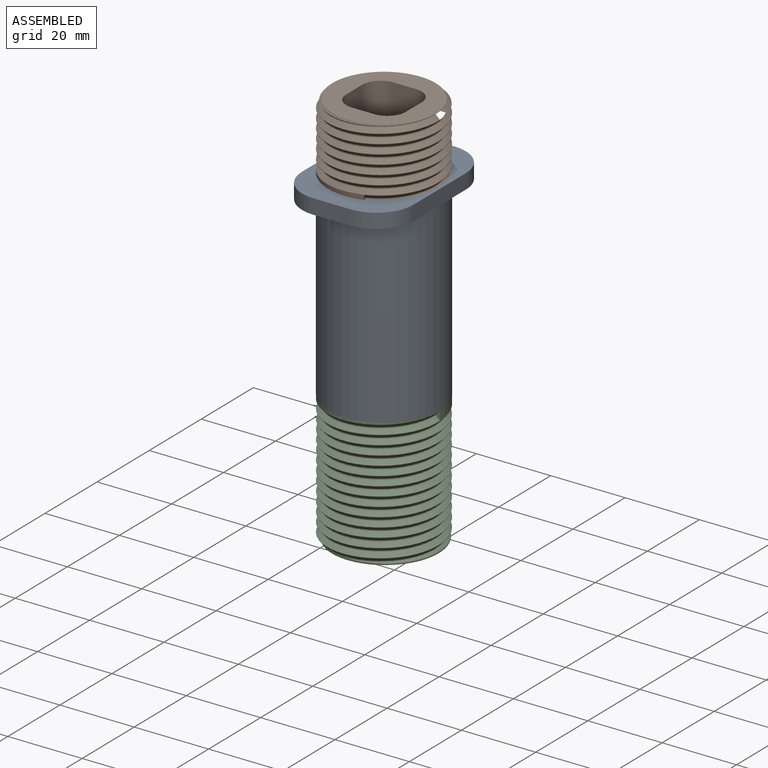
[diagram: assembled view]
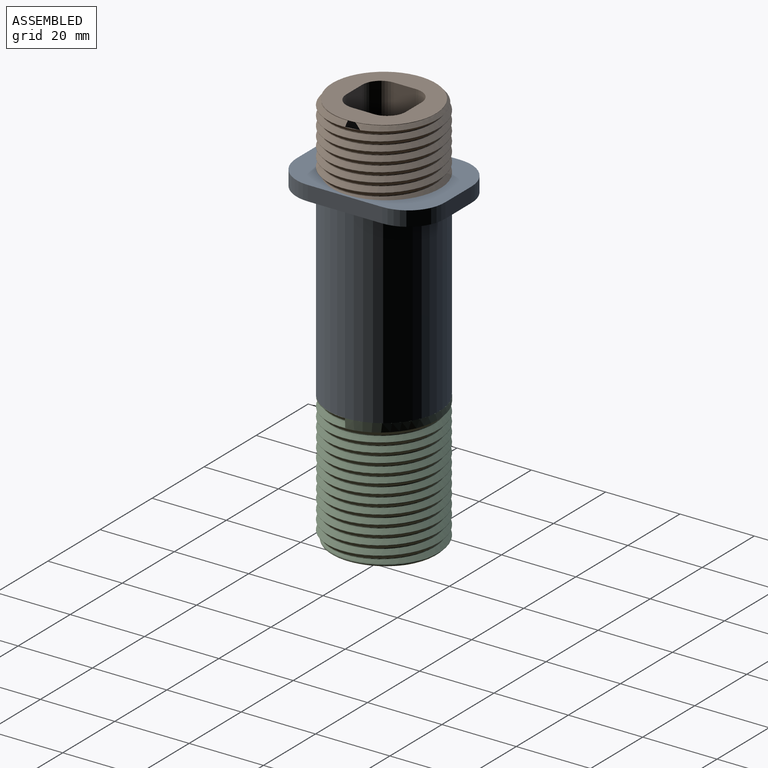
[diagram: assembled view, second angle]
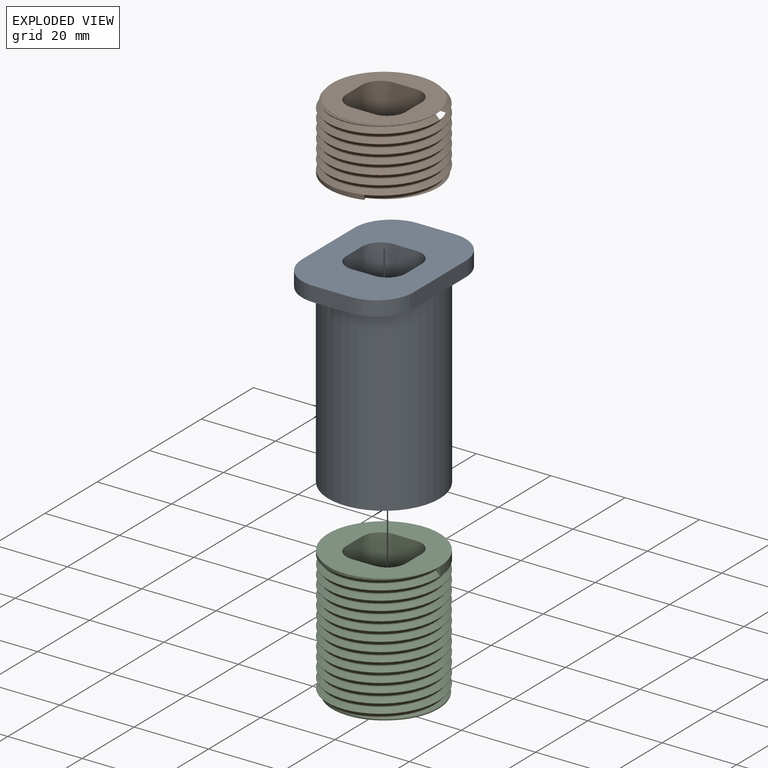
[diagram: exploded view]
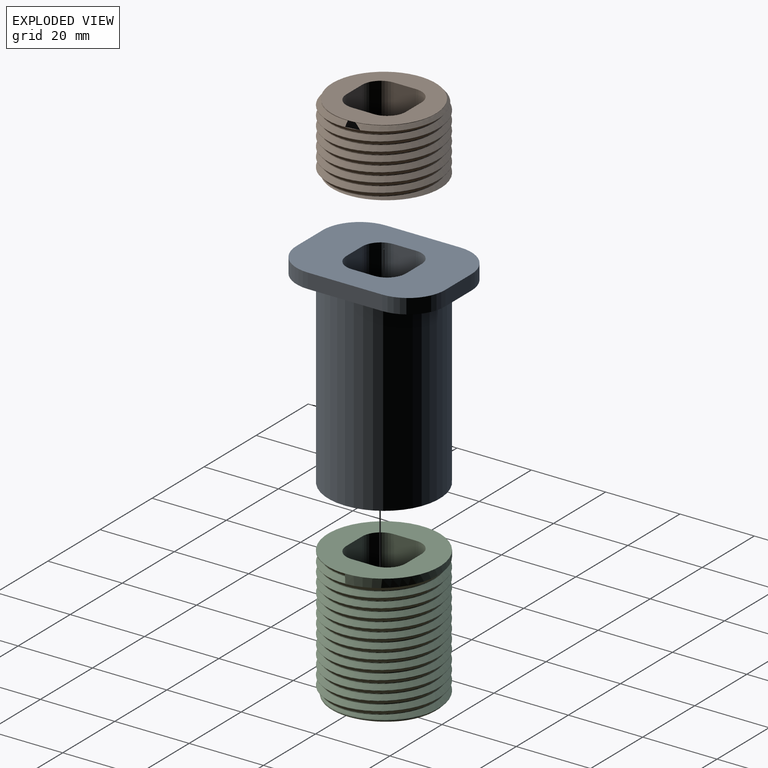
[diagram: exploded view, second angle]
ASSEMBLY  parts=3 mates=2
PART A: 21 faces, bbox 30x40x54 mm
  f0: plane 30x30mm, normal (0,0,-1), area 472.3mm2, adj f2,f13,f14,f15,f16,f17,f18,f19
  f1: plane 40x30mm, normal (0,0,1), area 879.6mm2, adj f5,f6,f7,f8,f9,f10,f11,f12
  f2: cylinder r=15mm len=50mm, axis (0,0,-1), area 4712.4mm2, adj f0,f3,f4
  f3: plane 30x20mm, normal (0,0,-1), area 203.7mm2, adj f2,f5,f6,f7,f9,f10
  f4: plane 30x20mm, normal (0,0,-1), area 203.7mm2, adj f2,f5,f7,f8,f11,f12
  f5: plane 20x4mm, normal (1,0,0), area 80mm2, adj f1,f3,f4,f9,f12
  f6: plane 10x4mm, normal (0,1,0), area 40mm2, adj f1,f3,f9,f10
  f7: plane 20x4mm, normal (-1,0,0), area 80mm2, adj f1,f3,f4,f10,f11
  f8: plane 10x4mm, normal (0,-1,0), area 40mm2, adj f1,f4,f11,f12
  f9: cylinder r=10mm len=10mm, axis (0,0,1), area 62.8mm2, adj f1,f3,f5,f6
  f10: cylinder r=10mm len=10mm, axis (0,0,-1), area 62.8mm2, adj f1,f3,f6,f7
  f11: cylinder r=10mm len=10mm, axis (0,0,1), area 62.8mm2, adj f1,f4,f7,f8
  f12: cylinder r=10mm len=10mm, axis (0,0,-1), area 62.8mm2, adj f1,f4,f5,f8
  f13: plane 54x6mm, normal (1,0,0), area 324mm2, adj f0,f1,f17,f20
  f14: plane 54x6mm, normal (0,-1,0), area 324mm2, adj f0,f1,f17,f18
  f15: plane 54x6mm, normal (-1,0,0), area 324mm2, adj f0,f1,f18,f19
  f16: plane 54x6mm, normal (0,1,0), area 324mm2, adj f0,f1,f19,f20
  f17: cylinder r=5mm len=54mm, axis (0,0,-1), area 424.1mm2, adj f0,f1,f13,f14
  f18: cylinder r=5mm len=54mm, axis (0,0,1), area 424.1mm2, adj f0,f1,f14,f15
  f19: cylinder r=5mm len=54mm, axis (0,0,-1), area 424.1mm2, adj f0,f1,f15,f16
  f20: cylinder r=5mm len=54mm, axis (0,0,1), area 424.1mm2, adj f0,f1,f13,f16
PART B: 17 faces, bbox 30.1x34.7x20.3 mm
  f0: cylinder r=15mm len=30mm, axis (0,0,-1), area -339.8mm2, adj f1,f3,f4,f6
  f1: bspline ~34.64x30.04mm, area 945.7mm2, adj f0,f4,f5,f16
  f2: plane 28.03x27.93mm, normal (0,0,1), area 372.5mm2, adj f5,f7,f8,f9,f10,f11,f12,f13
  f3: plane 29.98x29.35mm, normal (0,0,-1), area 446mm2, adj f0,f4,f5,f6,f7,f8,f9,f10
  f4: plane 1.21x1.06mm, normal (0.95,0.31,0.03), area 0.7mm2, adj f0,f1,f3,f5
  f5: bspline ~32.1x27.8mm, area 123.8mm2, adj f1,f2,f3,f4,f6,f15
  f6: bspline ~29.99x29.97mm, area 929.5mm2, adj f0,f3,f5,f16
  f7: plane 18x6mm, normal (0,-1,0), area 108mm2, adj f2,f3,f11,f14
  f8: plane 18x6mm, normal (1,0,0), area 108mm2, adj f2,f3,f11,f12
  f9: plane 18x6mm, normal (0,1,0), area 108mm2, adj f2,f3,f12,f13
  f10: plane 18x6mm, normal (-1,0,0), area 108mm2, adj f2,f3,f13,f14
  f11: cylinder r=5mm len=18mm, axis (0,0,1), area 141.4mm2, adj f2,f3,f7,f8
  f12: cylinder r=5mm len=18mm, axis (0,0,-1), area 141.4mm2, adj f2,f3,f8,f9
  f13: cylinder r=5mm len=18mm, axis (0,0,1), area 141.4mm2, adj f2,f3,f9,f10
  f14: cylinder r=5mm len=18mm, axis (0,0,-1), area 141.4mm2, adj f2,f3,f7,f10
  f15: revolved ~27.78x27.77mm, area 8.4mm2, adj f2,f5,f16
  f16: revolved ~29.98x29.96mm, area -66.6mm2, adj f1,f6,f15
PART C: 16 faces, bbox 30.6x35.1x37 mm
  f0: plane 28.71x28.47mm, normal (0,0,1), area 388.3mm2, adj f5,f6,f7,f8,f9,f10,f11,f12
  f1: plane 30x30mm, normal (0,0,-1), area 472.3mm2, adj f2,f7,f8,f9,f10,f11,f12,f13
  f2: cylinder r=15mm len=34.53mm, axis (0,0,-1), area -229.4mm2, adj f1,f3,f4,f6,f15
  f3: plane 2.4x1.1mm, normal (0,1,0.03), area 1.4mm2, adj f2,f4,f5,f6
  f4: bspline ~34.64x34.43mm, area 1845.1mm2, adj f2,f3,f5,f15
  f5: bspline ~35.52x32.1mm, area 236.5mm2, adj f0,f3,f4,f6,f15
  f6: bspline ~36.1x34.64mm, area 1934.6mm2, adj f0,f2,f3,f5,f15
  f7: plane 35x6mm, normal (-1,0,0), area 210mm2, adj f0,f1,f11,f14
  f8: plane 35x6mm, normal (0,-1,0), area 210mm2, adj f0,f1,f11,f12
  f9: plane 35x6mm, normal (1,0,0), area 210mm2, adj f0,f1,f12,f13
  f10: plane 35x6mm, normal (0,1,0), area 210mm2, adj f0,f1,f13,f14
  f11: cylinder r=5mm len=35mm, axis (0,0,1), area 274.9mm2, adj f0,f1,f7,f8
  f12: cylinder r=5mm len=35mm, axis (0,0,-1), area 274.9mm2, adj f0,f1,f8,f9
  f13: cylinder r=5mm len=35mm, axis (0,0,1), area 274.9mm2, adj f0,f1,f9,f10
  f14: cylinder r=5mm len=35mm, axis (0,0,-1), area 274.9mm2, adj f0,f1,f7,f10
  f15: bspline ~30.2x16.63mm, area 33mm2, adj f0,f2,f4,f5,f6
PLACE A t=(-22.63,2.59,-8.52)mm
PLACE B t=(-22.63,2.59,45.48)mm
PLACE C rot(axis=(1,0,0),180deg) t=(-22.63,2.59,-8.52)mm
MATE fastened C.f2 <-> A.f2  axis (0,0,1) through (-22.63,2.59,-8.52)mm
MATE fastened B.f0 <-> A.f2  axis (0,0,1) through (-22.63,2.59,45.48)mm
